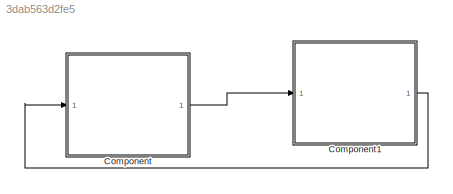
MODEL slx_3dab563d2fe5
KIND model
CONFIG AbsTol = auto
CONFIG EnableMultiTasking = off
CONFIG FixedStep = auto
CONFIG MaxStep = auto
CONFIG MinStep = auto
CONFIG RelTol = 1e-3
CONFIG SampleTimeConstraint = Unconstrained
CONFIG SolverName = VariableStepAuto
CONFIG StartTime = 0.0
CONFIG StopTime = 10.0
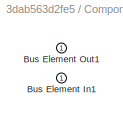
BLOCK [SubSystem] Component
  PortSchema = {"entries":[{"content":{"headerSize":26,"margin":15,"minimumSpacing":25,"sides":[{"content":{"connectorIds":["In1"]},"type":"ConnectorPlacement.EquallySpacedRectSide","uuid":"aa52b74a-9d38-4cb8-a1e6-6acdda091f36"},{"content":{"connectorIds":["Out1"],"side":"RIGHT"},"type":"ConnectorPlacement.EquallySpacedRectSide","uuid":"53c62da1-e771-479e-b8d7-766aa75dfe09"},{"content":{"connectorIds":[],"side":...<+432ch>
  Ports = [1, 1]
  RequestExecContextInheritance = off
BLOCK [Inport] Component/Bus Element In1
BLOCK [Outport] Component/Bus Element Out1
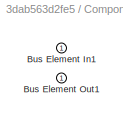
BLOCK [SubSystem] Component1
  PortSchema = {"entries":[{"content":{"headerSize":26,"margin":15,"minimumSpacing":25,"sides":[{"content":{"connectorIds":["In1"]},"type":"ConnectorPlacement.EquallySpacedRectSide","uuid":"aa52b74a-9d38-4cb8-a1e6-6acdda091f36"},{"content":{"connectorIds":["Out1"],"side":"RIGHT"},"type":"ConnectorPlacement.EquallySpacedRectSide","uuid":"53c62da1-e771-479e-b8d7-766aa75dfe09"},{"content":{"connectorIds":[],"side":...<+432ch>
  Ports = [1, 1]
  RequestExecContextInheritance = off
BLOCK [Inport] Component1/Bus Element In1
BLOCK [Outport] Component1/Bus Element Out1
LINE Component1:1 -> Component:1
LINE Component:1 -> Component1:1
